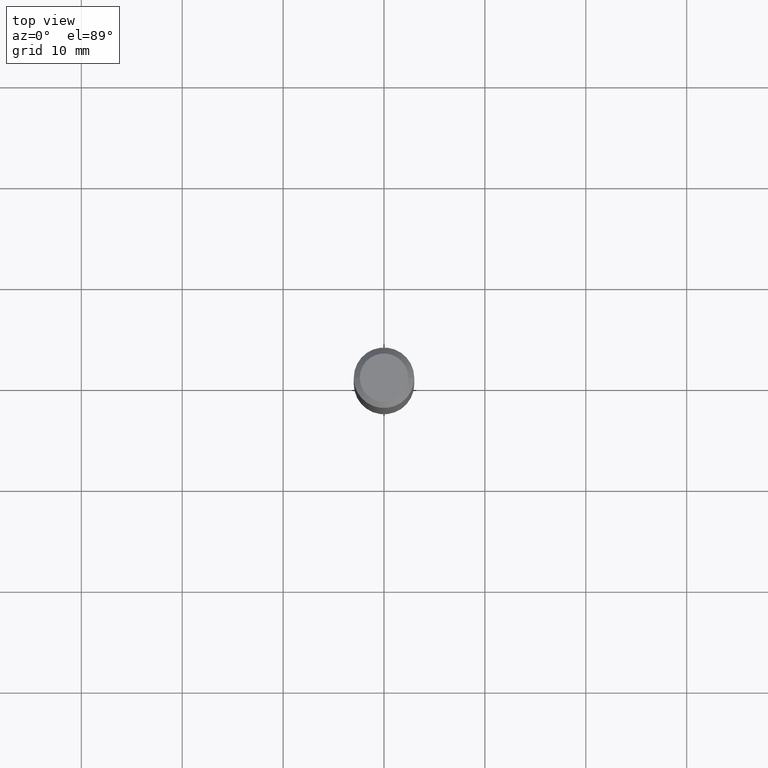
[diagram: clean part render]
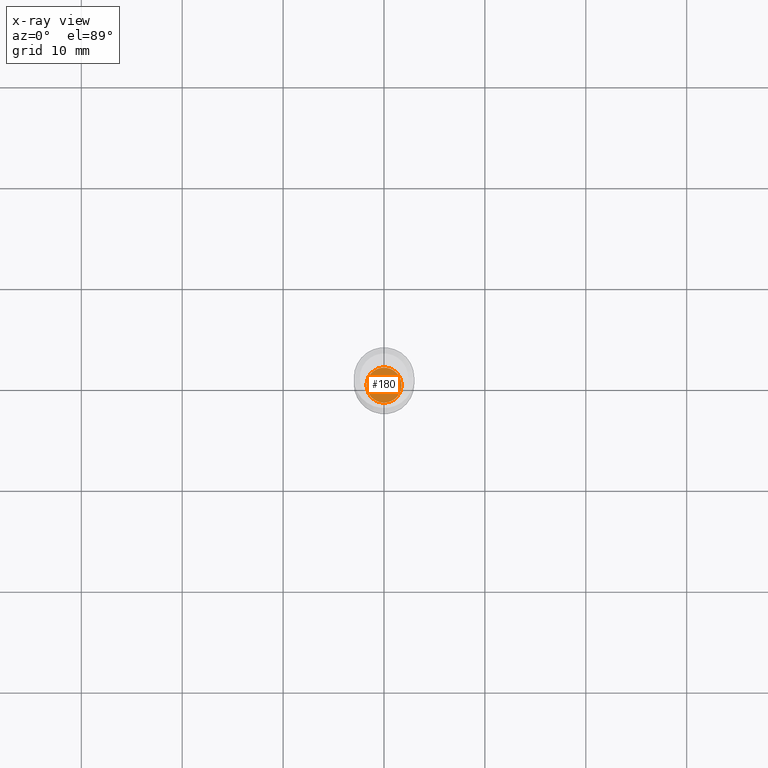
[diagram: x-ray — body ghosted, one internal face saturated and labeled with its STEP entity id]
A machine part, top view, then the same camera in x-ray: the body is ghosted and one INTERNAL B-rep face — a face not visible from any outside direction — is saturated and labeled: STEP entity #180.
In plain terms, the highlighted planar face has unit normal (-0, 0, 1).
Its self-contained STEP definition (entity closure, byte-faithful):
#5 = DIRECTION ( 'NONE',  ( -2.445468806185136597E-29, 3.491481338843145583E-15, 1.000000000000000000 ) ) ;
#15 = DIRECTION ( 'NONE',  ( 1.000000000000000000, -6.982962677686265922E-15, 4.876176775795935793E-29 ) ) ;
#37 = EDGE_CURVE ( 'NONE', #478, #163, #320, .T. ) ;
#41 = AXIS2_PLACEMENT_3D ( 'NONE', #432, #436, #474 ) ;
#123 = PLANE ( 'NONE',  #402 ) ;
#163 = VERTEX_POINT ( 'NONE', #198 ) ;
#180 = ADVANCED_FACE ( 'NONE', ( #468 ), #123, .F. ) ;
#188 = CIRCLE ( 'NONE', #41, 0.06840000000000000246 ) ;
#198 = CARTESIAN_POINT ( 'NONE',  ( 0.06840000000000000246, -6.388363405681301806E-15, -1.692899999999999849 ) ) ;
#231 = DIRECTION ( 'NONE',  ( -2.438088387897960049E-29, 3.491481338843145188E-15, 1.000000000000000000 ) ) ;
#254 = ORIENTED_EDGE ( 'NONE', *, *, #262, .F. ) ;
#262 = EDGE_CURVE ( 'NONE', #163, #478, #188, .T. ) ;
#281 = ORIENTED_EDGE ( 'NONE', *, *, #37, .F. ) ;
#320 = CIRCLE ( 'NONE', #369, 0.06840000000000000246 ) ;
#326 = EDGE_LOOP ( 'NONE', ( #254, #281 ) ) ;
#341 = DIRECTION ( 'NONE',  ( 1.000000000000000000, -6.982962677686273810E-15, 0.000000000000000000 ) ) ;
#345 = CARTESIAN_POINT ( 'NONE',  ( 4.139934141990817236E-29, -5.910728758527560286E-15, -1.692899999999999849 ) ) ;
#369 = AXIS2_PLACEMENT_3D ( 'NONE', #381, #5, #341 ) ;
#373 = CARTESIAN_POINT ( 'NONE',  ( -0.06840000000000000246, -5.422068300093541231E-15, -1.692899999999999849 ) ) ;
#381 = CARTESIAN_POINT ( 'NONE',  ( 4.139934141990817236E-29, -5.910728758527560286E-15, -1.692899999999999849 ) ) ;
#402 = AXIS2_PLACEMENT_3D ( 'NONE', #345, #231, #15 ) ;
#432 = CARTESIAN_POINT ( 'NONE',  ( 4.139934141990817236E-29, -5.910728758527560286E-15, -1.692899999999999849 ) ) ;
#436 = DIRECTION ( 'NONE',  ( -2.445468806185136597E-29, 3.491481338843145583E-15, 1.000000000000000000 ) ) ;
#468 = FACE_OUTER_BOUND ( 'NONE', #326, .T. ) ;
#474 = DIRECTION ( 'NONE',  ( 1.000000000000000000, -6.982962677686273810E-15, 0.000000000000000000 ) ) ;
#478 = VERTEX_POINT ( 'NONE', #373 ) ;